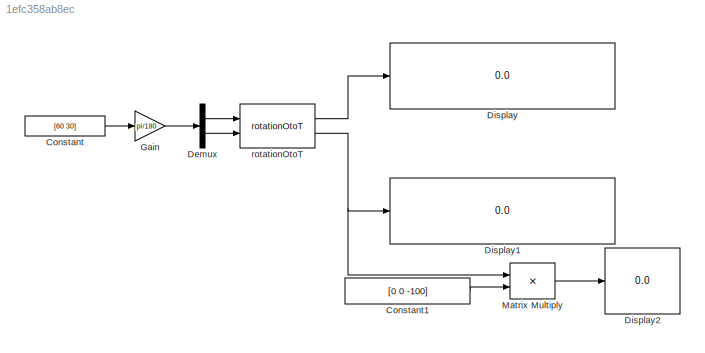
MODEL slx_1efc358ab8ec
KIND model
CONFIG AbsTol = auto
CONFIG EnableMultiTasking = off
CONFIG FixedStep = auto
CONFIG MaxStep = auto
CONFIG MinStep = auto
CONFIG RelTol = 1e-3
CONFIG SampleTimeConstraint = Unconstrained
CONFIG Solver = VariableStepAuto
CONFIG SolverName = VariableStepAuto
CONFIG StartTime = 0.0
CONFIG StopTime = 0
BLOCK [Constant] Constant
  Value = [60 30]
BLOCK [Constant] Constant1
  Value = [0 0 -100]
BLOCK [Demux] Demux
  Outputs = 2
  Ports = [1, 2]
BLOCK [Display] Display
  Decimation = 1
  Ports = [1]
BLOCK [Display] Display1
  Decimation = 1
  Ports = [1]
BLOCK [Display] Display2
  Decimation = 1
  Ports = [1]
BLOCK [Gain] Gain
  Gain = pi/180
BLOCK [Product] Matrix Multiply
  Multiplication = Matrix(*)
  Ports = [2, 1]
BLOCK [Reference] rotationOtoT  REF=makeOcT_cl/rotationOtoT
  Ports = [2, 2]
  SourceBlock = makeOcT_cl/rotationOtoT
  SourceType = SubSystem
LINE Constant1:1 -> Matrix Multiply:2
LINE Constant:1 -> Gain:1
LINE Demux:1 -> rotationOtoT:1
LINE Demux:2 -> rotationOtoT:2
LINE Gain:1 -> Demux:1
LINE Matrix Multiply:1 -> Display2:1
LINE rotationOtoT:1 -> Display:1
NET rotationOtoT:2 -> Display1:1, Matrix Multiply:1
note: NET lines group one-source signal fan-out (src -> all destinations, sorted); 1:1 wires keep LINE
